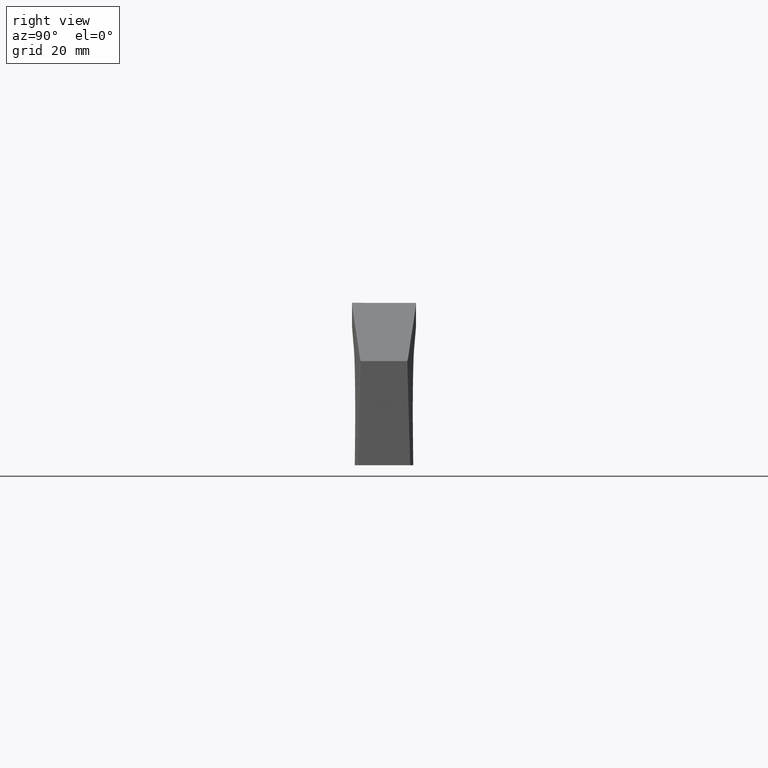
[diagram: clean part render]
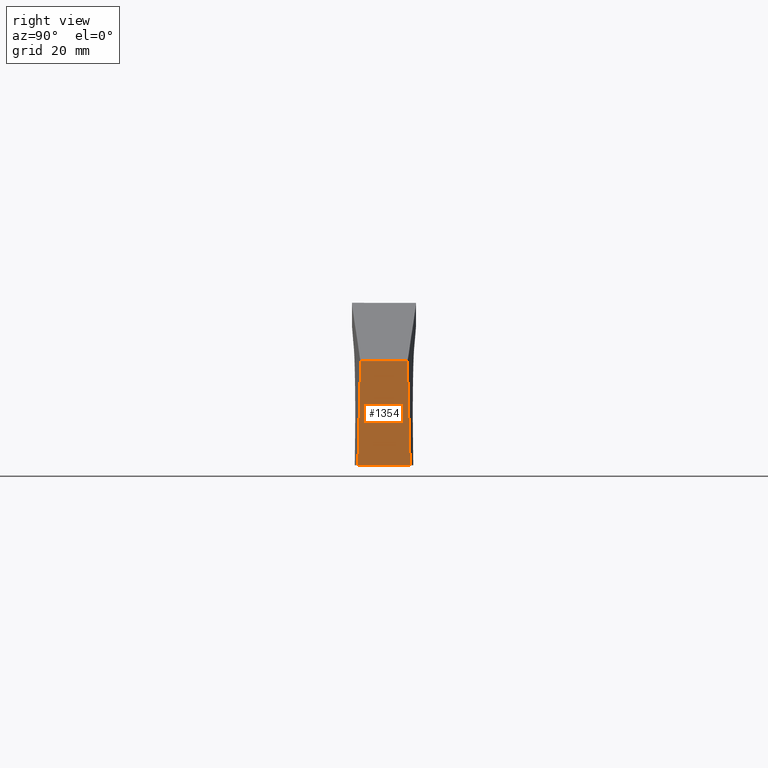
[diagram: same view with one face highlighted and labeled with its STEP entity id]
A machine part, right view. The second image highlights one B-rep face of the part: STEP entity #1354.
In plain terms, the highlighted face is a freeform B-spline surface patch.
Its self-contained STEP definition (entity closure, byte-faithful):
#1096=CARTESIAN_POINT('',(59.500311120296097,4.000003706765780,17.881867431229651));
#1097=VERTEX_POINT('',#1096);
#1198=CARTESIAN_POINT('',(59.500311120296097,-4.000003706765675,17.881867431229701));
#1199=VERTEX_POINT('',#1198);
#1291=CARTESIAN_POINT('',(59.500311120296097,-4.000003706765675,17.881867431229701));
#1292=CARTESIAN_POINT('',(59.500311120296097,4.000003706765780,17.881867431229651));
#1293=QUASI_UNIFORM_CURVE('',1,(#1291,#1292),.UNSPECIFIED.,.F.,.U.);
#1294=EDGE_CURVE('',#1199,#1097,#1293,.T.);
#1327=CARTESIAN_POINT('',(61.075224455713709,-4.949549982556260,-0.893199411395203));
#1328=CARTESIAN_POINT('',(59.425386637759502,-4.949549982556260,18.775067162376061));
#1329=CARTESIAN_POINT('',(61.075224455713709,4.949550223955191,-0.893199411395203));
#1330=CARTESIAN_POINT('',(59.425386637759502,4.949550223955191,18.775067162376061));
#1331=B_SPLINE_SURFACE_WITH_KNOTS('',1,1,((#1327,#1329),(#1328,#1330)),.UNSPECIFIED.,.F.,.F.,.U.,(2,2),(2,2),(0.0,19.737342142306801),(0.0,9.899100206511450),.UNSPECIFIED.);
#1332=ORIENTED_EDGE('',*,*,#1294,.F.);
#1333=CARTESIAN_POINT('',(61.000299999999001,-4.500000000000000,-1.554312E-012));
#1334=VERTEX_POINT('',#1333);
#1335=CARTESIAN_POINT('',(59.500311120296097,-4.000003706765675,17.881867431229701));
#1336=CARTESIAN_POINT('',(61.000299999999001,-4.500000000000000,-1.554312E-012));
#1337=QUASI_UNIFORM_CURVE('',1,(#1335,#1336),.UNSPECIFIED.,.F.,.U.);
#1338=EDGE_CURVE('',#1199,#1334,#1337,.T.);
#1339=ORIENTED_EDGE('',*,*,#1338,.T.);
#1340=CARTESIAN_POINT('',(61.000300000000003,4.500000000000119,-4.440892E-013));
#1341=VERTEX_POINT('',#1340);
#1342=CARTESIAN_POINT('',(61.000299999999001,-4.500000000000000,-1.554312E-012));
#1343=CARTESIAN_POINT('',(61.000300000000003,4.500000000000119,-4.440892E-013));
#1344=QUASI_UNIFORM_CURVE('',1,(#1342,#1343),.UNSPECIFIED.,.F.,.U.);
#1345=EDGE_CURVE('',#1334,#1341,#1344,.T.);
#1346=ORIENTED_EDGE('',*,*,#1345,.T.);
#1347=CARTESIAN_POINT('',(61.000300000000003,4.500000000000119,-4.440892E-013));
#1348=CARTESIAN_POINT('',(59.500311120296097,4.000003706765780,17.881867431229651));
#1349=QUASI_UNIFORM_CURVE('',1,(#1347,#1348),.UNSPECIFIED.,.F.,.U.);
#1350=EDGE_CURVE('',#1341,#1097,#1349,.T.);
#1351=ORIENTED_EDGE('',*,*,#1350,.T.);
#1352=EDGE_LOOP('',(#1332,#1339,#1346,#1351));
#1353=FACE_OUTER_BOUND('',#1352,.T.);
#1354=ADVANCED_FACE('',(#1353),#1331,.F.);